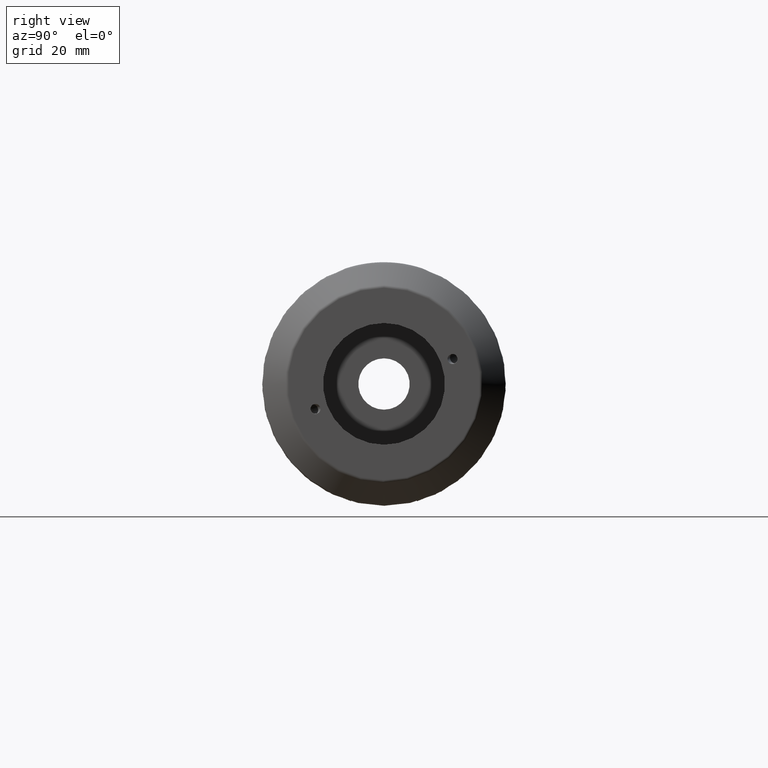
[diagram: clean part render]
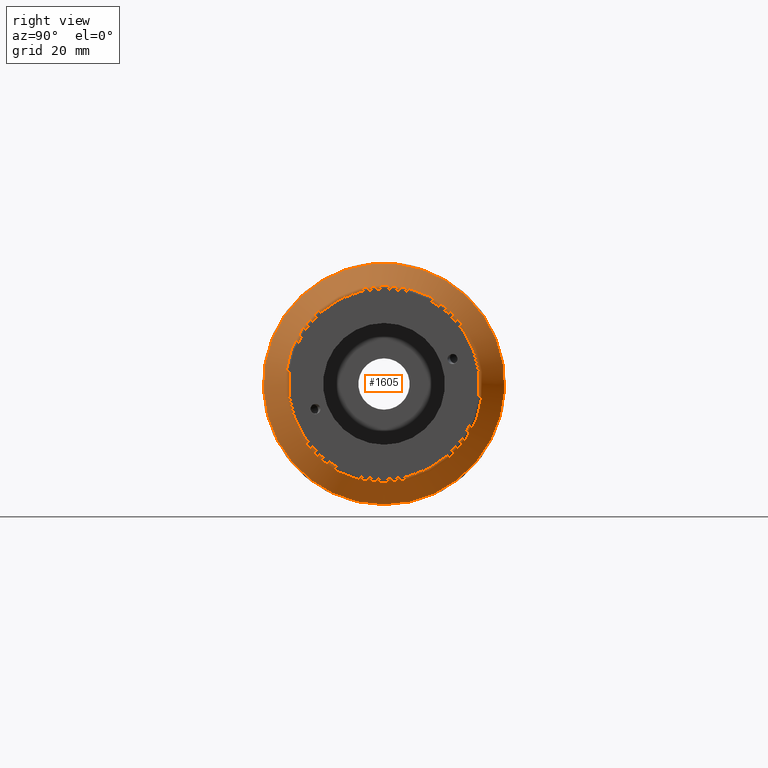
[diagram: same view with one face highlighted and labeled with its STEP entity id]
A machine part, right view. The second image highlights one B-rep face of the part: STEP entity #1605.
In plain terms, the highlighted conical surface has half-angle 45 deg.
Its self-contained STEP definition (entity closure, byte-faithful):
#212=FACE_OUTER_BOUND('',#310,.T.);
#310=EDGE_LOOP('',(#1152,#1153,#1154,#1155));
#422=LINE('',#2693,#512);
#512=VECTOR('',#1984,28.625);
#601=CIRCLE('',#1737,25.7928932188135);
#604=CIRCLE('',#1741,31.4571067811865);
#703=VERTEX_POINT('',#2685);
#705=VERTEX_POINT('',#2691);
#878=EDGE_CURVE('',#703,#703,#601,.T.);
#881=EDGE_CURVE('',#705,#705,#604,.T.);
#882=EDGE_CURVE('',#705,#703,#422,.T.);
#1152=ORIENTED_EDGE('',*,*,#881,.F.);
#1153=ORIENTED_EDGE('',*,*,#882,.T.);
#1154=ORIENTED_EDGE('',*,*,#878,.F.);
#1155=ORIENTED_EDGE('',*,*,#882,.F.);
#1578=CONICAL_SURFACE('',#1740,28.625,0.785398163397448);
#1605=ADVANCED_FACE('',(#212),#1578,.T.);
#1737=AXIS2_PLACEMENT_3D('',#2686,#1974,#1975);
#1740=AXIS2_PLACEMENT_3D('',#2690,#1980,#1981);
#1741=AXIS2_PLACEMENT_3D('',#2692,#1982,#1983);
#1974=DIRECTION('center_axis',(1.,0.,0.));
#1975=DIRECTION('ref_axis',(0.,1.91152679763551E-32,-1.));
#1980=DIRECTION('center_axis',(-1.,0.,0.));
#1981=DIRECTION('ref_axis',(0.,0.,1.));
#1982=DIRECTION('center_axis',(-1.,0.,0.));
#1983=DIRECTION('ref_axis',(0.,1.56733443158861E-32,-1.));
#1984=DIRECTION('',(0.707106781186548,8.65956056235493E-17,0.707106781186547));
#2685=CARTESIAN_POINT('',(99.7071067811866,-3.15871841211694E-15,-25.7928932188135));
#2686=CARTESIAN_POINT('Origin',(99.7071067811866,-3.15871841211694E-15,
0.));
#2690=CARTESIAN_POINT('Origin',(96.875,0.,0.));
#2691=CARTESIAN_POINT('',(94.0428932188134,-3.85238451300166E-15,-31.4571067811865));
#2692=CARTESIAN_POINT('Origin',(94.0428932188134,-3.85238451300166E-15,
0.));
#2693=CARTESIAN_POINT('',(96.875,-3.5055514625593E-15,-28.625));